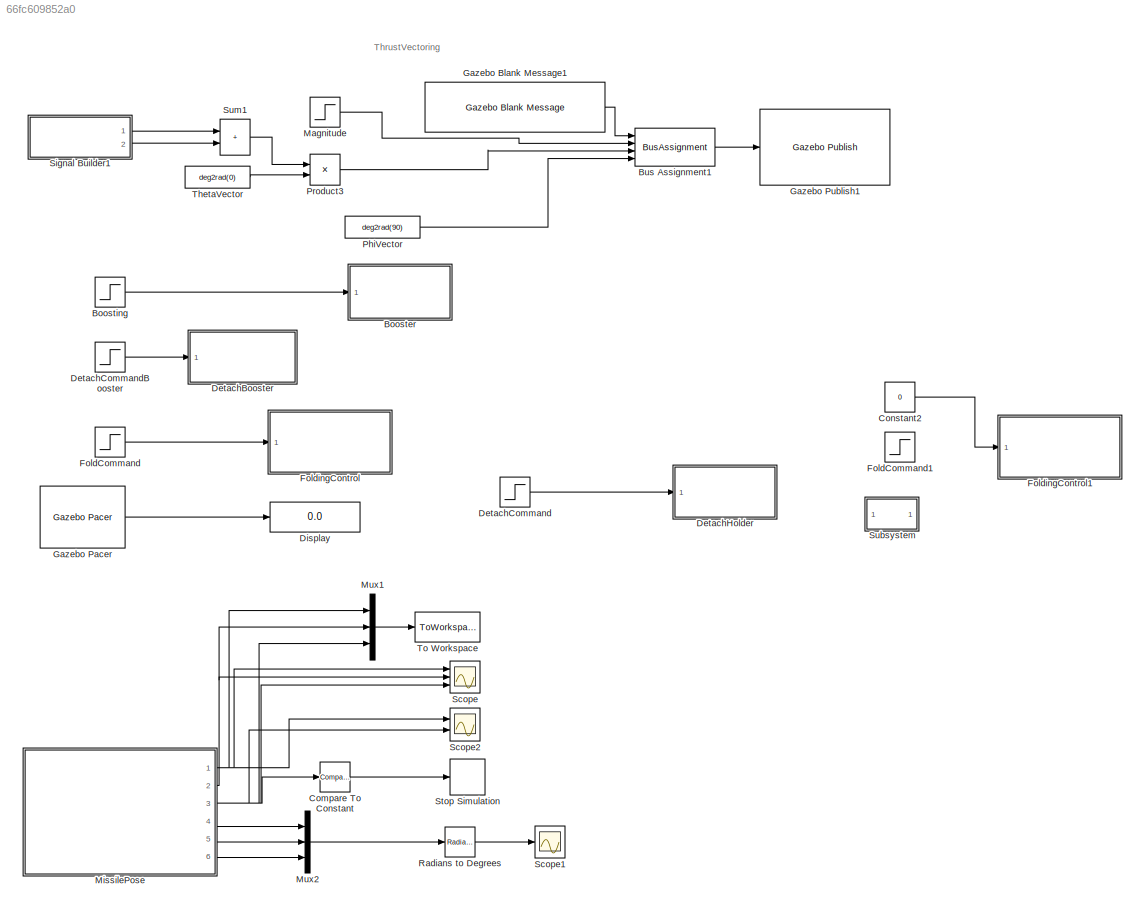
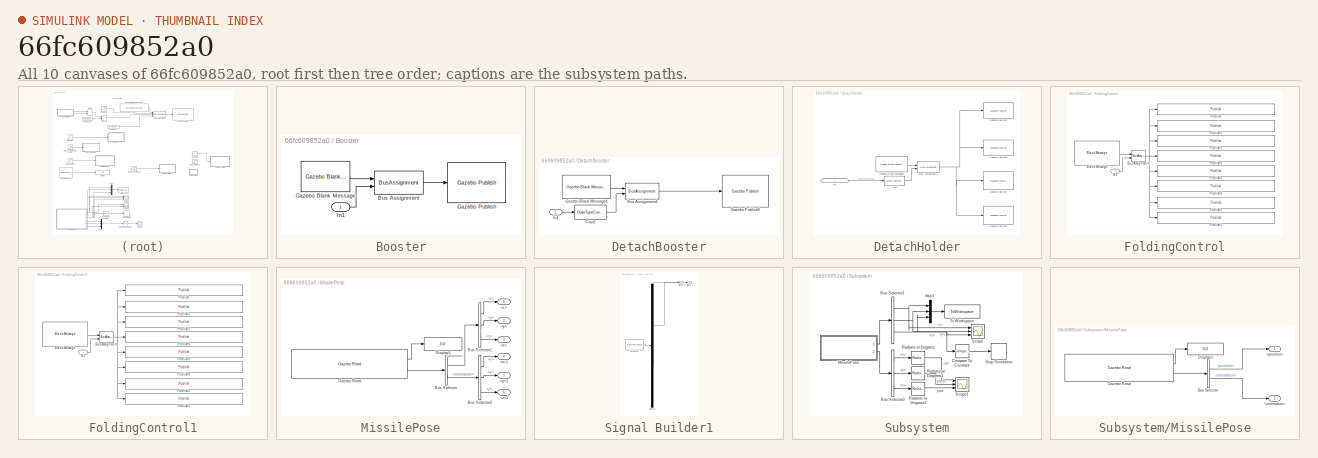
[diagram: thumbnail index - all 10 canvases of the model, root first then tree order]
MODEL slx_66fc609852a0
KIND model
CONFIG AbsTol = auto
CONFIG EnableMultiTasking = off
CONFIG FixedStep = 0.001
CONFIG MaxStep = auto
CONFIG MinStep = auto
CONFIG RelTol = 1e-3
CONFIG SampleTimeConstraint = Unconstrained
CONFIG SolverName = FixedStepAuto
CONFIG StartTime = 0.0
CONFIG StopFcn = airframe_plot
CONFIG StopTime = 30
BLOCK [SubSystem] Booster
  Commented = on
  Ports = [1]
  RequestExecContextInheritance = off
BLOCK [BusAssignment] Booster/Bus Assignment
  AssignedSignals = data
  Ports = [2, 1]
BLOCK [Reference] Booster/Gazebo Blank Message  REF=robotgazebolib/Gazebo Blank Message
  Ports = [0, 1]
  SourceBlock = robotgazebolib/Gazebo Blank Message
  SourceProductBaseCode = RO
  SourceType = Gazebo Blank Message
BLOCK [Reference] Booster/Gazebo Publish  REF=robotgazebolib/Gazebo Publish
  Ports = [1]
  SourceBlock = robotgazebolib/Gazebo Publish
  SourceProductBaseCode = RO
  SourceType = Gazebo Publish
BLOCK [Inport] Booster/In1
BLOCK [Step] Boosting
  After = 0
  Before = 780*9.8*20
  Commented = on
  SampleTime = 0
  Time = 3
BLOCK [BusAssignment] Bus Assignment1
  AssignedSignals = r,theta,phi
  Ports = [4, 1]
BLOCK [Reference] Compare To Constant  REF=simulink/Logic and Bit
Operations/Compare
To Constant
  Ports = [1, 1]
  SourceBlock = simulink/Logic and Bit\nOperations/Compare\nTo Constant
  SourceProductBaseCode = SL
  SourceType = Compare To Constant
BLOCK [Constant] Constant2
  Commented = on
  Value = 0
BLOCK [SubSystem] DetachBooster
  Commented = on
  Ports = [1]
  RequestExecContextInheritance = off
BLOCK [BusAssignment] DetachBooster/Bus Assignment4
  AssignedSignals = data
  Ports = [2, 1]
BLOCK [DataTypeConversion] DetachBooster/Cast1
  OutDataTypeStr = int32
  RndMeth = Floor
  SaturateOnIntegerOverflow = off
BLOCK [Reference] DetachBooster/Gazebo Blank Message4  REF=robotgazebolib/Gazebo Blank Message
  Ports = [0, 1]
  SourceBlock = robotgazebolib/Gazebo Blank Message
  SourceProductBaseCode = RO
  SourceType = Gazebo Blank Message
BLOCK [Reference] DetachBooster/Gazebo Publish6  REF=robotgazebolib/Gazebo Publish
  Ports = [1]
  SourceBlock = robotgazebolib/Gazebo Publish
  SourceProductBaseCode = RO
  SourceType = Gazebo Publish
BLOCK [Inport] DetachBooster/In1
BLOCK [Step] DetachCommand
  Commented = on
  SampleTime = 0
  Time = 0.5
BLOCK [Step] DetachCommandBooster
  Commented = on
  SampleTime = 0
  Time = 3
BLOCK [SubSystem] DetachHolder
  Commented = on
  Ports = [1]
  RequestExecContextInheritance = off
BLOCK [BusAssignment] DetachHolder/Bus Assignment3
  AssignedSignals = data
  Ports = [2, 1]
BLOCK [DataTypeConversion] DetachHolder/Cast
  OutDataTypeStr = int32
  RndMeth = Floor
  SaturateOnIntegerOverflow = off
BLOCK [Reference] DetachHolder/Gazebo Blank Message3  REF=robotgazebolib/Gazebo Blank Message
  Ports = [0, 1]
  SourceBlock = robotgazebolib/Gazebo Blank Message
  SourceProductBaseCode = RO
  SourceType = Gazebo Blank Message
BLOCK [Reference] DetachHolder/Gazebo Publish2  REF=robotgazebolib/Gazebo Publish
  Ports = [1]
  SourceBlock = robotgazebolib/Gazebo Publish
  SourceProductBaseCode = RO
  SourceType = Gazebo Publish
BLOCK [Reference] DetachHolder/Gazebo Publish3  REF=robotgazebolib/Gazebo Publish
  Ports = [1]
  SourceBlock = robotgazebolib/Gazebo Publish
  SourceProductBaseCode = RO
  SourceType = Gazebo Publish
BLOCK [Reference] DetachHolder/Gazebo Publish4  REF=robotgazebolib/Gazebo Publish
  Ports = [1]
  SourceBlock = robotgazebolib/Gazebo Publish
  SourceProductBaseCode = RO
  SourceType = Gazebo Publish
BLOCK [Reference] DetachHolder/Gazebo Publish5  REF=robotgazebolib/Gazebo Publish
  Ports = [1]
  SourceBlock = robotgazebolib/Gazebo Publish
  SourceProductBaseCode = RO
  SourceType = Gazebo Publish
BLOCK [Inport] DetachHolder/In1
  IconDisplay = Port number and signal name
BLOCK [Display] Display
  Decimation = 1
  Ports = [1]
BLOCK [Step] FoldCommand
  After = 0
  Before = deg2rad(123)
  SampleTime = 0
  Time = 0.75
BLOCK [Step] FoldCommand1
  After = 0
  Before = deg2rad(123)
  Commented = on
  SampleTime = 0
  Time = 0.5
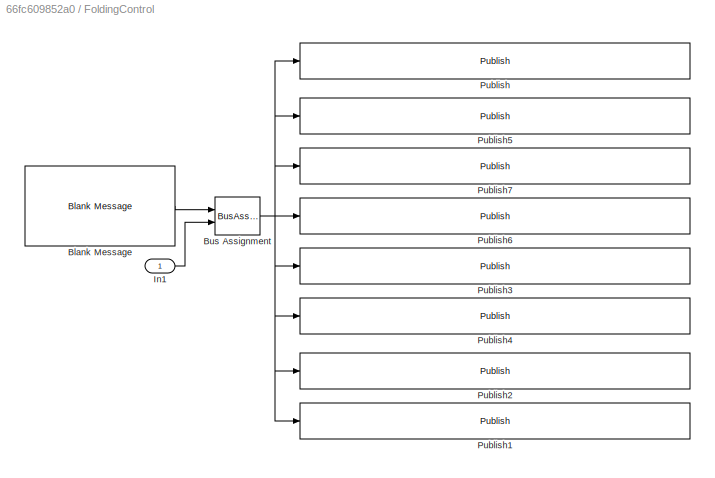
BLOCK [SubSystem] FoldingControl
  Ports = [1]
  RequestExecContextInheritance = off
BLOCK [Reference] FoldingControl/Blank Message  REF=robotlib/Blank Message
  Ports = [0, 1]
  SourceBlock = robotlib/Blank Message
  SourceProductBaseCode = RR
  SourceType = ROS Blank Message
BLOCK [BusAssignment] FoldingControl/Bus Assignment
  AssignedSignals = Data
  Ports = [2, 1]
BLOCK [Inport] FoldingControl/In1
BLOCK [Reference] FoldingControl/Publish  REF=robotlib/Publish
  Ports = [1]
  SourceBlock = robotlib/Publish
  SourceProductBaseCode = RR
  SourceType = ROS Publish
BLOCK [Reference] FoldingControl/Publish1  REF=robotlib/Publish
  Ports = [1]
  SourceBlock = robotlib/Publish
  SourceProductBaseCode = RR
  SourceType = ROS Publish
BLOCK [Reference] FoldingControl/Publish2  REF=robotlib/Publish
  Ports = [1]
  SourceBlock = robotlib/Publish
  SourceProductBaseCode = RR
  SourceType = ROS Publish
BLOCK [Reference] FoldingControl/Publish3  REF=robotlib/Publish
  Ports = [1]
  SourceBlock = robotlib/Publish
  SourceProductBaseCode = RR
  SourceType = ROS Publish
BLOCK [Reference] FoldingControl/Publish4  REF=robotlib/Publish
  Ports = [1]
  SourceBlock = robotlib/Publish
  SourceProductBaseCode = RR
  SourceType = ROS Publish
BLOCK [Reference] FoldingControl/Publish5  REF=robotlib/Publish
  Ports = [1]
  SourceBlock = robotlib/Publish
  SourceProductBaseCode = RR
  SourceType = ROS Publish
BLOCK [Reference] FoldingControl/Publish6  REF=robotlib/Publish
  Ports = [1]
  SourceBlock = robotlib/Publish
  SourceProductBaseCode = RR
  SourceType = ROS Publish
BLOCK [Reference] FoldingControl/Publish7  REF=robotlib/Publish
  Ports = [1]
  SourceBlock = robotlib/Publish
  SourceProductBaseCode = RR
  SourceType = ROS Publish
BLOCK [SubSystem] FoldingControl1
  Commented = on
  Ports = [1]
  RequestExecContextInheritance = off
BLOCK [Reference] FoldingControl1/Blank Message  REF=robotlib/Blank Message
  Ports = [0, 1]
  SourceBlock = robotlib/Blank Message
  SourceProductBaseCode = RR
  SourceType = ROS Blank Message
BLOCK [BusAssignment] FoldingControl1/Bus Assignment
  AssignedSignals = Data
  Ports = [2, 1]
BLOCK [Inport] FoldingControl1/In1
BLOCK [Reference] FoldingControl1/Publish  REF=robotlib/Publish
  Ports = [1]
  SourceBlock = robotlib/Publish
  SourceProductBaseCode = RR
  SourceType = ROS Publish
BLOCK [Reference] FoldingControl1/Publish1  REF=robotlib/Publish
  Ports = [1]
  SourceBlock = robotlib/Publish
  SourceProductBaseCode = RR
  SourceType = ROS Publish
BLOCK [Reference] FoldingControl1/Publish2  REF=robotlib/Publish
  Ports = [1]
  SourceBlock = robotlib/Publish
  SourceProductBaseCode = RR
  SourceType = ROS Publish
BLOCK [Reference] FoldingControl1/Publish3  REF=robotlib/Publish
  Ports = [1]
  SourceBlock = robotlib/Publish
  SourceProductBaseCode = RR
  SourceType = ROS Publish
BLOCK [Reference] FoldingControl1/Publish4  REF=robotlib/Publish
  Ports = [1]
  SourceBlock = robotlib/Publish
  SourceProductBaseCode = RR
  SourceType = ROS Publish
BLOCK [Reference] FoldingControl1/Publish5  REF=robotlib/Publish
  Ports = [1]
  SourceBlock = robotlib/Publish
  SourceProductBaseCode = RR
  SourceType = ROS Publish
BLOCK [Reference] FoldingControl1/Publish6  REF=robotlib/Publish
  Ports = [1]
  SourceBlock = robotlib/Publish
  SourceProductBaseCode = RR
  SourceType = ROS Publish
BLOCK [Reference] FoldingControl1/Publish7  REF=robotlib/Publish
  Ports = [1]
  SourceBlock = robotlib/Publish
  SourceProductBaseCode = RR
  SourceType = ROS Publish
BLOCK [Reference] Gazebo Blank Message1  REF=robotgazebolib/Gazebo Blank Message
  Ports = [0, 1]
  SourceBlock = robotgazebolib/Gazebo Blank Message
  SourceProductBaseCode = RO
  SourceType = Gazebo Blank Message
BLOCK [Reference] Gazebo Pacer  REF=robotgazebolib/Gazebo Pacer
  Ports = [0, 1]
  SourceBlock = robotgazebolib/Gazebo Pacer
  SourceProductBaseCode = RO
  SourceType = Gazebo Pacer
BLOCK [Reference] Gazebo Publish1  REF=robotgazebolib/Gazebo Publish
  Ports = [1]
  SourceBlock = robotgazebolib/Gazebo Publish
  SourceProductBaseCode = RO
  SourceType = Gazebo Publish
BLOCK [Step] Magnitude
  After = 16000
  Before = 80000
  SampleTime = 0
  Time = 2
BLOCK [SubSystem] MissilePose
  Ports = [0, 6]
  RequestExecContextInheritance = off
BLOCK [Outport] MissilePose/<x>
BLOCK [Outport] MissilePose/<x>1
  Port = 4
BLOCK [Outport] MissilePose/<y>
  Port = 2
BLOCK [Outport] MissilePose/<y>1
  Port = 5
BLOCK [Outport] MissilePose/<z>
  Port = 3
BLOCK [Outport] MissilePose/<z>1
  Port = 6
BLOCK [BusSelector] MissilePose/Bus Selector
  OutputSignals = position,orientation
  Ports = [1, 2]
BLOCK [BusSelector] MissilePose/Bus Selector1
  OutputSignals = x,y,z
  Ports = [1, 3]
BLOCK [BusSelector] MissilePose/Bus Selector2
  OutputSignals = x,y,z
  Ports = [1, 3]
BLOCK [Display] MissilePose/Display1
  Decimation = 1
  Ports = [1]
BLOCK [Reference] MissilePose/Gazebo Read  REF=robotgazebolib/Gazebo Read
  Ports = [0, 2]
  SourceBlock = robotgazebolib/Gazebo Read
  SourceProductBaseCode = RO
  SourceType = Gazebo Read
BLOCK [Mux] Mux1
  DisplayOption = bar
  Inputs = 3
  Ports = [3, 1]
BLOCK [Mux] Mux2
  DisplayOption = bar
  Inputs = 3
  Ports = [3, 1]
BLOCK [Constant] PhiVector
  Value = deg2rad(90)
BLOCK [Product] Product3
  Ports = [2, 1]
BLOCK [Reference] Radians to Degrees  REF=simulink_extras/Transformations/Radians
to Degrees
  Ports = [1, 1]
  SourceBlock = simulink_extras/Transformations/Radians\nto Degrees
  SourceProductBaseCode = SL
  SourceType = RadiansToDegrees
BLOCK [Scope] Scope
  Floating = off
  NumInputPorts = 3
  Ports = [3]
  ScopeSpecificationString = Simulink.scopes.TimeScopeBlockCfg('CurrentConfiguration', extmgr.ConfigurationSet(extmgr.Configuration('Core','General UI',true),extmgr.Configuration('Core','Source UI',true),extmgr.Configuration('Sources','WiredSimulink',true,'DataLogging',true,'DataLoggingSaveFormat','Structure'),extmgr.Configuration('Visuals','Time Domain',true,'SerializedDisplays',{struct('MinYLimReal','-18032.21524','MaxYLimR...<+2722ch>
BLOCK [Scope] Scope1
  Floating = off
  NumInputPorts = 1
  Ports = [1]
  ScopeSpecificationString = Simulink.scopes.TimeScopeBlockCfg('CurrentConfiguration', extmgr.ConfigurationSet(extmgr.Configuration('Core','General UI',true),extmgr.Configuration('Core','Source UI',true),extmgr.Configuration('Sources','WiredSimulink',true,'DataLoggingVariableName','ScopeData1'),extmgr.Configuration('Visuals','Time Domain',true,'SerializedDisplays',{struct('MinYLimReal','-0.07106','MaxYLimReal','0.07105','YLab...<+1475ch>
BLOCK [Scope] Scope2
  Floating = off
  NumInputPorts = 2
  Ports = [2]
  ScopeSpecificationString = Simulink.scopes.TimeScopeBlockCfg('CurrentConfiguration', extmgr.ConfigurationSet(extmgr.Configuration('Core','General UI',true),extmgr.Configuration('Core','Source UI',true),extmgr.Configuration('Sources','WiredSimulink',true,'DataLogging',true,'DataLoggingSaveFormat','Structure','DataLoggingVariableName','ScopeData1'),extmgr.Configuration('Visuals','Time Domain',true,'SerializedDisplays',{struct...<+2069ch>
BLOCK [SubSystem] Signal Builder1
  ClipboardFcn = sigbuilder_block('clipboard');
  CloseFcn = sigbuilder_block('close');
  ContinueFcn = sigbuilder_block('continue');
  CopyFcn = sigbuilder_block('copy');
  DeleteFcn = sigbuilder_block('delete');
  LoadFcn = sigbuilder_block('load');
  MaskHideContents = on
  ModelCloseFcn = sigbuilder_block('modelClose');
  NameChangeFcn = sigbuilder_block('namechange');
  OpenFcn = sigbuilder_block('open',[40.5 0 1399.5 658.5 ]);
  PauseFcn = sigbuilder_block('pause');
  Ports = [0, 2]
  PreSaveFcn = sigbuilder_block('preSave');
  RequestExecContextInheritance = off
  StartFcn = sigbuilder_block('start');
  StopFcn = sigbuilder_block('stop');
  Tag = STV Subsys
BLOCK [Demux] Signal Builder1/Demux
  DisplayOption = none
  Outputs = 2
  Ports = [1, 2]
  Tag = STV Demux
BLOCK [FromWorkspace] Signal Builder1/FromWs
  Tag = STV FromWs
  VariableName = tuvar
BLOCK [Outport] Signal Builder1/Signal 1
  Tag = STV Outport
BLOCK [Outport] Signal Builder1/Signal 3
  Port = 2
  Tag = STV Outport
BLOCK [Stop] Stop Simulation
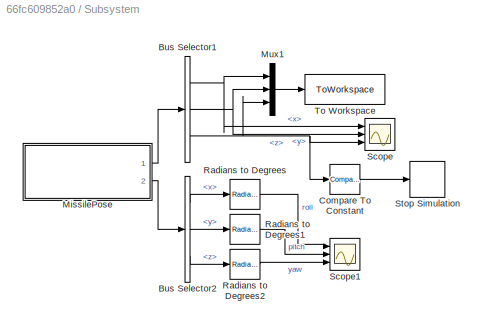
BLOCK [SubSystem] Subsystem
  Commented = on
  Ports = []
  RequestExecContextInheritance = off
BLOCK [BusSelector] Subsystem/Bus Selector1
  Commented = on
  OutputSignals = x,y,z
  Ports = [1, 3]
BLOCK [BusSelector] Subsystem/Bus Selector2
  Commented = on
  OutputSignals = x,y,z
  Ports = [1, 3]
BLOCK [Reference] Subsystem/Compare To Constant  REF=simulink/Logic and Bit
Operations/Compare
To Constant
  Commented = on
  Ports = [1, 1]
  SourceBlock = simulink/Logic and Bit\nOperations/Compare\nTo Constant
  SourceProductBaseCode = SL
  SourceType = Compare To Constant
BLOCK [SubSystem] Subsystem/MissilePose
  Commented = on
  Ports = [0, 2]
  RequestExecContextInheritance = off
BLOCK [Outport] Subsystem/MissilePose/<orientation>
  Port = 2
BLOCK [Outport] Subsystem/MissilePose/<position>
BLOCK [BusSelector] Subsystem/MissilePose/Bus Selector
  OutputSignals = position,orientation
  Ports = [1, 2]
BLOCK [Display] Subsystem/MissilePose/Display1
  Decimation = 1
  Ports = [1]
BLOCK [Reference] Subsystem/MissilePose/Gazebo Read  REF=robotgazebolib/Gazebo Read
  Ports = [0, 2]
  SourceBlock = robotgazebolib/Gazebo Read
  SourceProductBaseCode = RO
  SourceType = Gazebo Read
BLOCK [Mux] Subsystem/Mux1
  Commented = on
  DisplayOption = bar
  Inputs = 3
  Ports = [3, 1]
BLOCK [Reference] Subsystem/Radians to Degrees  REF=simulink_extras/Transformations/Radians
to Degrees
  Commented = on
  Ports = [1, 1]
  SourceBlock = simulink_extras/Transformations/Radians\nto Degrees
  SourceProductBaseCode = SL
  SourceType = RadiansToDegrees
BLOCK [Reference] Subsystem/Radians to Degrees1  REF=simulink_extras/Transformations/Radians
to Degrees
  Commented = on
  Ports = [1, 1]
  SourceBlock = simulink_extras/Transformations/Radians\nto Degrees
  SourceProductBaseCode = SL
  SourceType = RadiansToDegrees
BLOCK [Reference] Subsystem/Radians to Degrees2  REF=simulink_extras/Transformations/Radians
to Degrees
  Commented = on
  Ports = [1, 1]
  SourceBlock = simulink_extras/Transformations/Radians\nto Degrees
  SourceProductBaseCode = SL
  SourceType = RadiansToDegrees
BLOCK [Scope] Subsystem/Scope
  Commented = on
  Floating = off
  NumInputPorts = 3
  Ports = [3]
  ScopeSpecificationString = Simulink.scopes.TimeScopeBlockCfg('CurrentConfiguration', extmgr.ConfigurationSet(extmgr.Configuration('Core','General UI',true),extmgr.Configuration('Core','Source UI',true),extmgr.Configuration('Sources','WiredSimulink',true,'DataLogging',true,'DataLoggingSaveFormat','Structure'),extmgr.Configuration('Visuals','Time Domain',true,'SerializedDisplays',{struct('MinYLimReal','-18945.86367','MaxYLimR...<+2717ch>
BLOCK [Scope] Subsystem/Scope1
  Commented = on
  Floating = off
  NumInputPorts = 3
  Ports = [3]
  ScopeSpecificationString = Simulink.scopes.TimeScopeBlockCfg('CurrentConfiguration', extmgr.ConfigurationSet(extmgr.Configuration('Core','General UI',true),extmgr.Configuration('Core','Source UI',true),extmgr.Configuration('Sources','WiredSimulink',true,'DataLoggingVariableName','ScopeData1'),extmgr.Configuration('Visuals','Time Domain',true,'SerializedDisplays',{struct('MinYLimReal','-0.14409','MaxYLimReal','1.17391','YLab...<+2755ch>
BLOCK [Stop] Subsystem/Stop Simulation
  Commented = on
BLOCK [ToWorkspace] Subsystem/To Workspace
  Commented = on
  MaxDataPoints = inf
  Ports = [1]
  SampleTime = -1
  SaveFormat = Structure With Time
  VariableName = pose_missile
BLOCK [Sum] Sum1
  IconShape = rectangular
  Ports = [2, 1]
BLOCK [Constant] ThetaVector
  Value = deg2rad(0)
BLOCK [ToWorkspace] To Workspace
  MaxDataPoints = inf
  Ports = [1]
  SampleTime = -1
  SaveFormat = Structure With Time
  VariableName = pose_missile
ANNOTATION (root): ThrustVectoring
LINE Booster/Bus Assignment:1 -> Booster/Gazebo Publish:1
LINE Booster/Gazebo Blank Message:1 -> Booster/Bus Assignment:1
LINE Booster/In1:1 -> Booster/Bus Assignment:2
LINE Boosting:1 -> Booster:1
LINE Bus Assignment1:1 -> Gazebo Publish1:1
LINE Compare To Constant:1 -> Stop Simulation:1
LINE Constant2:1 -> FoldingControl1:1
LINE DetachBooster/Bus Assignment4:1 -> DetachBooster/Gazebo Publish6:1
LINE DetachBooster/Cast1:1 -> DetachBooster/Bus Assignment4:2
LINE DetachBooster/Gazebo Blank Message4:1 -> DetachBooster/Bus Assignment4:1
LINE DetachBooster/In1:1 -> DetachBooster/Cast1:1
LINE DetachCommand:1 -> DetachHolder:1
LINE DetachCommandBooster:1 -> DetachBooster:1
NET DetachHolder/Bus Assignment3:1 -> DetachHolder/Gazebo Publish2:1, DetachHolder/Gazebo Publish3:1, DetachHolder/Gazebo Publish4:1, DetachHolder/Gazebo Publish5:1
LINE DetachHolder/Cast:1 -> DetachHolder/Bus Assignment3:2
LINE DetachHolder/Gazebo Blank Message3:1 -> DetachHolder/Bus Assignment3:1
LINE DetachHolder/In1:1 -> DetachHolder/Cast:1
LINE FoldCommand:1 -> FoldingControl:1
LINE FoldingControl/Blank Message:1 -> FoldingControl/Bus Assignment:1
NET FoldingControl/Bus Assignment:1 -> FoldingControl/Publish1:1, FoldingControl/Publish2:1, FoldingControl/Publish3:1, FoldingControl/Publish4:1, FoldingControl/Publish5:1, FoldingControl/Publish6:1, FoldingControl/Publish7:1, FoldingControl/Publish:1
LINE FoldingControl/In1:1 -> FoldingControl/Bus Assignment:2
LINE FoldingControl1/Blank Message:1 -> FoldingControl1/Bus Assignment:1
NET FoldingControl1/Bus Assignment:1 -> FoldingControl1/Publish1:1, FoldingControl1/Publish2:1, FoldingControl1/Publish3:1, FoldingControl1/Publish4:1, FoldingControl1/Publish5:1, FoldingControl1/Publish6:1, FoldingControl1/Publish7:1, FoldingControl1/Publish:1
LINE FoldingControl1/In1:1 -> FoldingControl1/Bus Assignment:2
LINE Gazebo Blank Message1:1 -> Bus Assignment1:1
LINE Gazebo Pacer:1 -> Display:1
LINE Magnitude:1 -> Bus Assignment1:2
LINE MissilePose/Bus Selector1:1 -> MissilePose/<x>:1
LINE MissilePose/Bus Selector1:2 -> MissilePose/<y>:1
LINE MissilePose/Bus Selector1:3 -> MissilePose/<z>:1
LINE MissilePose/Bus Selector2:1 -> MissilePose/<x>1:1
LINE MissilePose/Bus Selector2:2 -> MissilePose/<y>1:1
LINE MissilePose/Bus Selector2:3 -> MissilePose/<z>1:1
LINE MissilePose/Bus Selector:1 -> MissilePose/Bus Selector1:1
LINE MissilePose/Bus Selector:2 -> MissilePose/Bus Selector2:1
LINE MissilePose/Gazebo Read:1 -> MissilePose/Display1:1
LINE MissilePose/Gazebo Read:2 -> MissilePose/Bus Selector:1
NET MissilePose:1 -> Mux1:1, Scope2:1, Scope:1
NET MissilePose:2 -> Mux1:2, Scope:2
NET MissilePose:3 -> Compare To Constant:1, Mux1:3, Scope2:2, Scope:3
LINE MissilePose:4 -> Mux2:1
LINE MissilePose:5 -> Mux2:2
LINE MissilePose:6 -> Mux2:3
LINE Mux1:1 -> To Workspace:1
LINE Mux2:1 -> Radians to Degrees:1
LINE PhiVector:1 -> Bus Assignment1:4
LINE Product3:1 -> Bus Assignment1:3
LINE Radians to Degrees:1 -> Scope1:1
LINE Signal Builder1:1 -> Sum1:1
LINE Signal Builder1:2 -> Sum1:2
NET Subsystem/Bus Selector1:1 -> Subsystem/Mux1:1, Subsystem/Scope:1
NET Subsystem/Bus Selector1:2 -> Subsystem/Mux1:2, Subsystem/Scope:2
NET Subsystem/Bus Selector1:3 -> Subsystem/Compare To Constant:1, Subsystem/Mux1:3, Subsystem/Scope:3
LINE Subsystem/Bus Selector2:1 -> Subsystem/Radians to Degrees:1
LINE Subsystem/Bus Selector2:2 -> Subsystem/Radians to Degrees1:1
LINE Subsystem/Bus Selector2:3 -> Subsystem/Radians to Degrees2:1
LINE Subsystem/Compare To Constant:1 -> Subsystem/Stop Simulation:1
LINE Subsystem/MissilePose/Bus Selector:1 -> Subsystem/MissilePose/<position>:1
LINE Subsystem/MissilePose/Bus Selector:2 -> Subsystem/MissilePose/<orientation>:1
LINE Subsystem/MissilePose/Gazebo Read:1 -> Subsystem/MissilePose/Display1:1
LINE Subsystem/MissilePose/Gazebo Read:2 -> Subsystem/MissilePose/Bus Selector:1
LINE Subsystem/MissilePose:1 -> Subsystem/Bus Selector1:1
LINE Subsystem/MissilePose:2 -> Subsystem/Bus Selector2:1
LINE Subsystem/Mux1:1 -> Subsystem/To Workspace:1
LINE Subsystem/Radians to Degrees1:1 -> Subsystem/Scope1:2
LINE Subsystem/Radians to Degrees2:1 -> Subsystem/Scope1:3
LINE Subsystem/Radians to Degrees:1 -> Subsystem/Scope1:1
LINE Sum1:1 -> Product3:1
LINE ThetaVector:1 -> Product3:2
note: NET lines group one-source signal fan-out (src -> all destinations, sorted); 1:1 wires keep LINE
